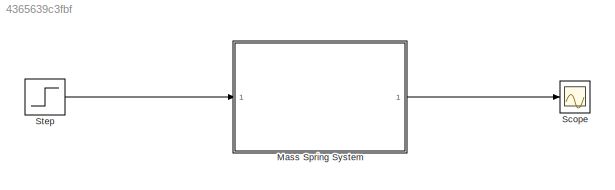
MODEL slx_4365639c3fbf
KIND model
CONFIG AbsTol = auto
CONFIG FixedStep = auto
CONFIG MaxStep = auto
CONFIG MinStep = auto
CONFIG RelTol = 1e-3
CONFIG SampleTimeConstraint = Unconstrained
CONFIG Solver = ode45
CONFIG SolverMode = Auto
CONFIG SolverName = ode45
CONFIG StartTime = 0.0
CONFIG StopTime = 40.0
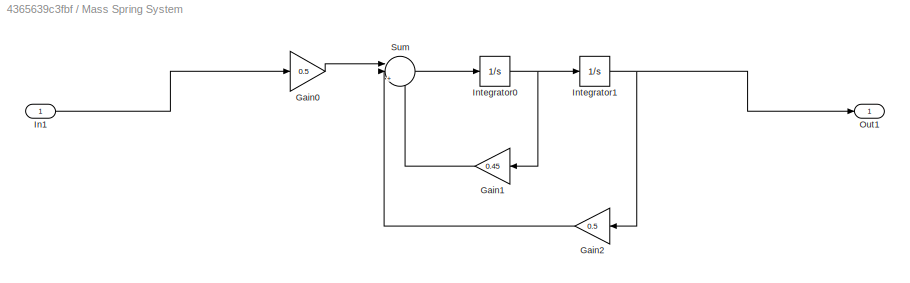
BLOCK [SubSystem] Mass Spring System
  Ports = [1, 1]
  RequestExecContextInheritance = off
BLOCK [Gain] Mass Spring System/Gain0
  Gain = 0.5
  OutDataTypeStr = Inherit: Inherit via internal rule
  ParamDataTypeStr = Inherit: Inherit via internal rule
  SaturateOnIntegerOverflow = off
BLOCK [Gain] Mass Spring System/Gain1
  Gain = 0.45
  OutDataTypeStr = Inherit: Inherit via internal rule
  ParamDataTypeStr = Inherit: Inherit via internal rule
  SaturateOnIntegerOverflow = off
BLOCK [Gain] Mass Spring System/Gain2
  Gain = 0.5
  OutDataTypeStr = Inherit: Inherit via internal rule
  ParamDataTypeStr = Inherit: Inherit via internal rule
  SaturateOnIntegerOverflow = off
BLOCK [Inport] Mass Spring System/In1
  IconDisplay = Port number
BLOCK [Integrator] Mass Spring System/Integrator0
  Ports = [1, 1]
BLOCK [Integrator] Mass Spring System/Integrator1
  Ports = [1, 1]
BLOCK [Outport] Mass Spring System/Out1
  IconDisplay = Port number
BLOCK [Sum] Mass Spring System/Sum
  IconShape = round
  InputSameDT = off
  Inputs = ||+--
  OutDataTypeStr = Inherit: Inherit via internal rule
  Ports = [3, 1]
  SaturateOnIntegerOverflow = off
BLOCK [Scope] Scope
  DataFormat = StructureWithTime
  Floating = off
  NumInputPorts = 1
  Ports = [1]
  SaveToWorkspace = on
  ZoomMode = yonly
BLOCK [Step] Step
  SampleTime = 0.01
  Time = 0
LINE Mass Spring System/Gain0:1 -> Mass Spring System/Sum:1
LINE Mass Spring System/Gain1:1 -> Mass Spring System/Sum:3
LINE Mass Spring System/Gain2:1 -> Mass Spring System/Sum:2
LINE Mass Spring System/In1:1 -> Mass Spring System/Gain0:1
NET Mass Spring System/Integrator0:1 -> Mass Spring System/Gain1:1, Mass Spring System/Integrator1:1
NET Mass Spring System/Integrator1:1 -> Mass Spring System/Gain2:1, Mass Spring System/Out1:1
LINE Mass Spring System/Sum:1 -> Mass Spring System/Integrator0:1
LINE Mass Spring System:1 -> Scope:1
LINE Step:1 -> Mass Spring System:1
note: NET lines group one-source signal fan-out (src -> all destinations, sorted); 1:1 wires keep LINE
